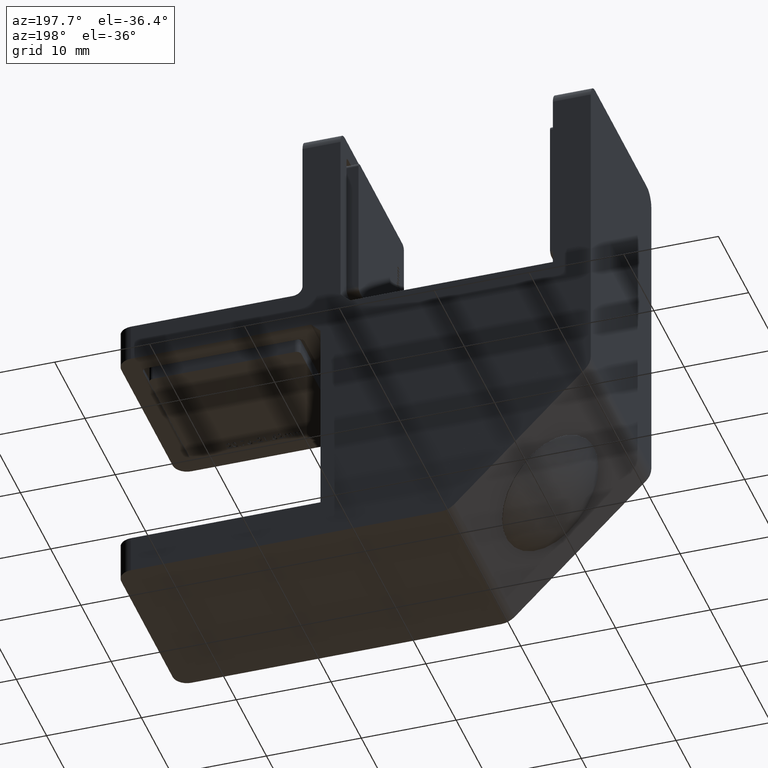
[diagram: clean part render]
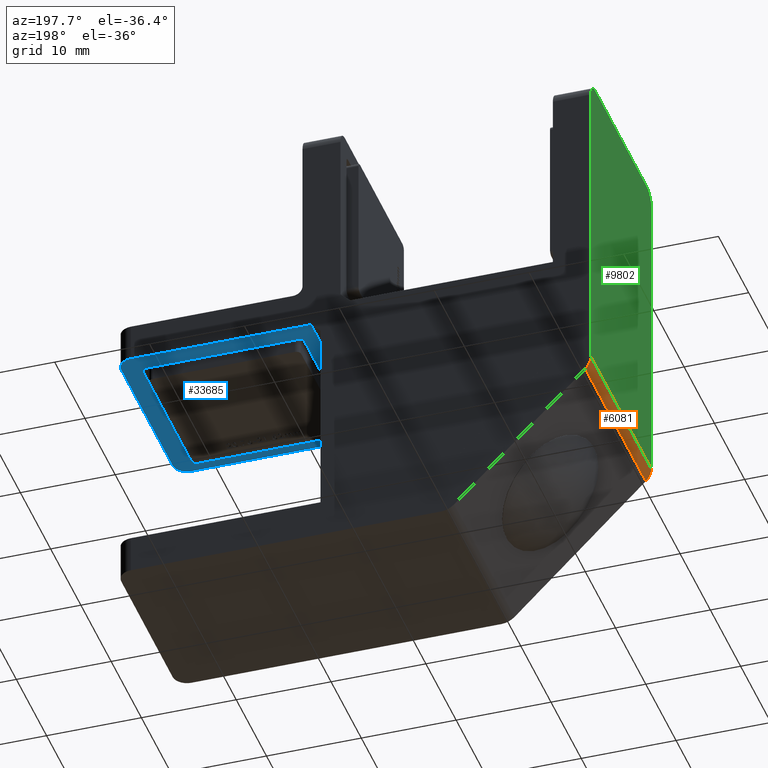
[diagram: same view with three faces highlighted in distinct colors, each labeled with its STEP entity id]
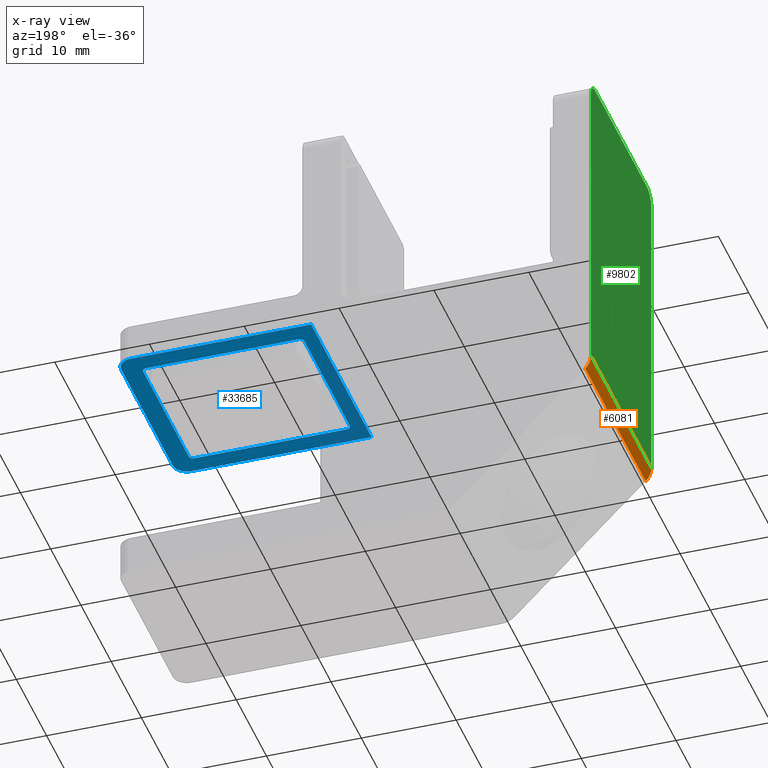
[diagram: x-ray of the same camera — body ghosted, the three highlighted faces saturated]
A machine part, auxiliary view with three faces highlighted in distinct colors.
The next image is the same camera in x-ray (body ghosted, the three faces saturated) — at least one of them is partly hidden behind the body in this view.
Their STEP definitions:

[orange] entity #6081 — the highlighted cylindrical surface (edge-blend (fillet) strip) has radius 2 mm, axis along (0, -1, 0).
#4755 = CIRCLE ( 'NONE', #55780, 2.000000000000000000 ) ;
#6081 = ADVANCED_FACE ( 'NONE', ( #44012 ), #61351, .T. ) ;
#7364 = EDGE_CURVE ( 'NONE', #7684, #48507, #10747, .T. ) ;
#7684 = VERTEX_POINT ( 'NONE', #45078 ) ;
#7805 = VERTEX_POINT ( 'NONE', #41856 ) ;
#8380 = DIRECTION ( 'NONE',  ( -0.000000000000000000, 1.000000000000000000, -0.000000000000000000 ) ) ;
#8778 = DIRECTION ( 'NONE',  ( 0.000000000000000000, 1.000000000000000000, 0.000000000000000000 ) ) ;
#10747 = LINE ( 'NONE', #51420, #48410 ) ;
#16428 = ORIENTED_EDGE ( 'NONE', *, *, #51409, .F. ) ;
#16558 = CARTESIAN_POINT ( 'NONE',  ( 0.000000000000000000, -10.00000000000000000, 15.82842712474619162 ) ) ;
#18268 = DIRECTION ( 'NONE',  ( -0.000000000000000000, -1.000000000000000000, 0.000000000000000000 ) ) ;
#20463 = ORIENTED_EDGE ( 'NONE', *, *, #7364, .F. ) ;
#20930 = AXIS2_PLACEMENT_3D ( 'NONE', #37857, #8778, #47795 ) ;
#21181 = CARTESIAN_POINT ( 'NONE',  ( 0.5857864376269044104, 10.00000000000000000, 14.41421356237309404 ) ) ;
#21252 = AXIS2_PLACEMENT_3D ( 'NONE', #44838, #50110, #34914 ) ;
#21787 = EDGE_CURVE ( 'NONE', #40176, #7684, #4755, .T. ) ;
#25315 = ORIENTED_EDGE ( 'NONE', *, *, #21787, .F. ) ;
#29814 = CARTESIAN_POINT ( 'NONE',  ( 2.000000000000000000, -10.00000000000000000, 15.82842712474619162 ) ) ;
#34914 = DIRECTION ( 'NONE',  ( 0.000000000000000000, 0.000000000000000000, -1.000000000000000000 ) ) ;
#37405 = EDGE_LOOP ( 'NONE', ( #50426, #20463, #25315, #16428 ) ) ;
#37857 = CARTESIAN_POINT ( 'NONE',  ( 2.000000000000000000, 10.00000000000000000, 15.82842712474619162 ) ) ;
#38076 = CARTESIAN_POINT ( 'NONE',  ( 0.000000000000000000, 10.00000000000000000, 15.82842712474619162 ) ) ;
#39085 = DIRECTION ( 'NONE',  ( 0.000000000000000000, 0.000000000000000000, -1.000000000000000000 ) ) ;
#40176 = VERTEX_POINT ( 'NONE', #16558 ) ;
#41856 = CARTESIAN_POINT ( 'NONE',  ( 0.000000000000000000, 10.00000000000000000, 15.82842712474619162 ) ) ;
#43531 = DIRECTION ( 'NONE',  ( -0.000000000000000000, -1.000000000000000000, -0.000000000000000000 ) ) ;
#44012 = FACE_OUTER_BOUND ( 'NONE', #37405, .T. ) ;
#44838 = CARTESIAN_POINT ( 'NONE',  ( 2.000000000000000000, 10.00000000000000000, 15.82842712474619162 ) ) ;
#45078 = CARTESIAN_POINT ( 'NONE',  ( 0.5857864376269044104, -10.00000000000000000, 14.41421356237309404 ) ) ;
#47795 = DIRECTION ( 'NONE',  ( 0.000000000000000000, 0.000000000000000000, -1.000000000000000000 ) ) ;
#48410 = VECTOR ( 'NONE', #8380, 1000.000000000000000 ) ;
#48507 = VERTEX_POINT ( 'NONE', #21181 ) ;
#50110 = DIRECTION ( 'NONE',  ( 0.000000000000000000, -1.000000000000000000, 0.000000000000000000 ) ) ;
#50166 = CIRCLE ( 'NONE', #20930, 2.000000000000000000 ) ;
#50426 = ORIENTED_EDGE ( 'NONE', *, *, #51489, .F. ) ;
#51409 = EDGE_CURVE ( 'NONE', #7805, #40176, #59947, .T. ) ;
#51420 = CARTESIAN_POINT ( 'NONE',  ( 0.5857864376269041884, 10.00000000000000000, 14.41421356237309404 ) ) ;
#51489 = EDGE_CURVE ( 'NONE', #48507, #7805, #50166, .T. ) ;
#55780 = AXIS2_PLACEMENT_3D ( 'NONE', #29814, #43531, #39085 ) ;
#59947 = LINE ( 'NONE', #38076, #61432 ) ;
#61351 = CYLINDRICAL_SURFACE ( 'NONE', #21252, 2.000000000000000000 ) ;
#61432 = VECTOR ( 'NONE', #18268, 1000.000000000000000 ) ;

[blue] entity #33685 — the highlighted planar face has unit normal (0, 0, -1).
#1101 = CARTESIAN_POINT ( 'NONE',  ( 31.00000000000001421, 7.499999999999969802, 26.39999999999994529 ) ) ;
#1469 = ORIENTED_EDGE ( 'NONE', *, *, #58417, .T. ) ;
#1585 = CARTESIAN_POINT ( 'NONE',  ( 48.49999999999998579, -10.00000000000000000, 26.40000000000000568 ) ) ;
#1742 = ORIENTED_EDGE ( 'NONE', *, *, #16383, .T. ) ;
#1967 = CARTESIAN_POINT ( 'NONE',  ( 48.49999999999998579, -8.500000000000000000, 26.40000000000000568 ) ) ;
#2564 = CARTESIAN_POINT ( 'NONE',  ( 0.000000000000000000, 10.00000000000000000, 26.40000000000000568 ) ) ;
#2615 = AXIS2_PLACEMENT_3D ( 'NONE', #44993, #25129, #49422 ) ;
#2921 = VECTOR ( 'NONE', #51959, 1000.000000000000000 ) ;
#3058 = CIRCLE ( 'NONE', #50586, 0.5000000000000004441 ) ;
#3414 = LINE ( 'NONE', #2564, #15508 ) ;
#3652 = DIRECTION ( 'NONE',  ( -1.000000000000000000, 0.000000000000000000, -0.000000000000000000 ) ) ;
#5118 = VECTOR ( 'NONE', #54086, 1000.000000000000000 ) ;
#5876 = LINE ( 'NONE', #41043, #17906 ) ;
#6794 = DIRECTION ( 'NONE',  ( 0.000000000000000000, 0.000000000000000000, -1.000000000000000000 ) ) ;
#6947 = ORIENTED_EDGE ( 'NONE', *, *, #19619, .T. ) ;
#7215 = CARTESIAN_POINT ( 'NONE',  ( 47.50000000000002132, -8.000000000000028422, 26.39999999999993463 ) ) ;
#7556 = EDGE_CURVE ( 'NONE', #39901, #30342, #3058, .T. ) ;
#8479 = CARTESIAN_POINT ( 'NONE',  ( 48.00000000000002132, 7.499999999999969802, 26.39999999999993463 ) ) ;
#8875 = VERTEX_POINT ( 'NONE', #16823 ) ;
#9306 = LINE ( 'NONE', #9565, #26692 ) ;
#9565 = CARTESIAN_POINT ( 'NONE',  ( 29.49999999999998579, 10.00000000000000000, 26.40000000000000568 ) ) ;
#10061 = DIRECTION ( 'NONE',  ( -1.000000000000000000, 0.000000000000000000, 0.000000000000000000 ) ) ;
#10345 = VECTOR ( 'NONE', #18848, 1000.000000000000000 ) ;
#10941 = LINE ( 'NONE', #42105, #28988 ) ;
#11229 = LINE ( 'NONE', #60721, #5118 ) ;
#11657 = CARTESIAN_POINT ( 'NONE',  ( 29.49999999999998579, -10.00000000000000000, 26.40000000000000568 ) ) ;
#12448 = EDGE_CURVE ( 'NONE', #42370, #34190, #47271, .T. ) ;
#12984 = CARTESIAN_POINT ( 'NONE',  ( 31.50000000000001421, 7.499999999999969802, 26.40000000000000568 ) ) ;
#14997 = CARTESIAN_POINT ( 'NONE',  ( 47.50000000000002132, 7.999999999999970690, 26.39999999999993463 ) ) ;
#15146 = CARTESIAN_POINT ( 'NONE',  ( 31.00000000000001421, 7.999999999999970690, 26.39999999999994529 ) ) ;
#15466 = VERTEX_POINT ( 'NONE', #36598 ) ;
#15508 = VECTOR ( 'NONE', #16956, 1000.000000000000000 ) ;
#15765 = DIRECTION ( 'NONE',  ( -0.000000000000000000, -0.000000000000000000, 1.000000000000000000 ) ) ;
#15981 = AXIS2_PLACEMENT_3D ( 'NONE', #12984, #55835, #46738 ) ;
#16383 = EDGE_CURVE ( 'NONE', #47585, #42370, #27738, .T. ) ;
#16823 = CARTESIAN_POINT ( 'NONE',  ( 49.99999999999998579, 8.500000000000000000, 26.40000000000000568 ) ) ;
#16956 = DIRECTION ( 'NONE',  ( 1.000000000000000000, -0.000000000000000000, 0.000000000000000000 ) ) ;
#16973 = EDGE_CURVE ( 'NONE', #44927, #28549, #46578, .T. ) ;
#17452 = ORIENTED_EDGE ( 'NONE', *, *, #26374, .T. ) ;
#17906 = VECTOR ( 'NONE', #28318, 1000.000000000000000 ) ;
#18215 = CARTESIAN_POINT ( 'NONE',  ( 0.000000000000000000, 10.00000000000000000, 26.40000000000000568 ) ) ;
#18530 = ORIENTED_EDGE ( 'NONE', *, *, #12448, .T. ) ;
#18848 = DIRECTION ( 'NONE',  ( 1.000000000000000000, -0.000000000000000000, 0.000000000000000000 ) ) ;
#19464 = ORIENTED_EDGE ( 'NONE', *, *, #16973, .F. ) ;
#19610 = AXIS2_PLACEMENT_3D ( 'NONE', #54338, #15765, #34501 ) ;
#19619 = EDGE_CURVE ( 'NONE', #15466, #22616, #3414, .T. ) ;
#19752 = CARTESIAN_POINT ( 'NONE',  ( 31.00000000000001421, -7.500000000000029310, 26.39999999999994529 ) ) ;
#19799 = CIRCLE ( 'NONE', #19610, 0.5000000000000004441 ) ;
#20185 = ORIENTED_EDGE ( 'NONE', *, *, #30281, .T. ) ;
#20201 = DIRECTION ( 'NONE',  ( -1.000000000000000000, -0.000000000000000000, 6.661338147750937270E-16 ) ) ;
#21797 = EDGE_CURVE ( 'NONE', #44927, #15466, #9306, .T. ) ;
#21895 = VERTEX_POINT ( 'NONE', #7215 ) ;
#22616 = VERTEX_POINT ( 'NONE', #34527 ) ;
#24027 = CIRCLE ( 'NONE', #58327, 1.500000000000001332 ) ;
#24300 = CARTESIAN_POINT ( 'NONE',  ( 31.50000000000001421, 7.999999999999970690, 26.39999999999994529 ) ) ;
#25109 = VERTEX_POINT ( 'NONE', #8479 ) ;
#25129 = DIRECTION ( 'NONE',  ( -0.000000000000000000, -0.000000000000000000, 1.000000000000000000 ) ) ;
#25516 = ORIENTED_EDGE ( 'NONE', *, *, #21797, .T. ) ;
#26374 = EDGE_CURVE ( 'NONE', #34190, #39901, #5876, .T. ) ;
#26692 = VECTOR ( 'NONE', #58053, 1000.000000000000000 ) ;
#27147 = ORIENTED_EDGE ( 'NONE', *, *, #54664, .T. ) ;
#27738 = LINE ( 'NONE', #15146, #58669 ) ;
#27958 = DIRECTION ( 'NONE',  ( -0.000000000000000000, -1.000000000000000000, -0.000000000000000000 ) ) ;
#28021 = FACE_OUTER_BOUND ( 'NONE', #46287, .T. ) ;
#28266 = ORIENTED_EDGE ( 'NONE', *, *, #32131, .T. ) ;
#28318 = DIRECTION ( 'NONE',  ( 0.000000000000000000, -1.000000000000000000, 0.000000000000000000 ) ) ;
#28549 = VERTEX_POINT ( 'NONE', #1585 ) ;
#28988 = VECTOR ( 'NONE', #27958, 1000.000000000000000 ) ;
#29112 = EDGE_CURVE ( 'NONE', #21895, #52349, #42665, .T. ) ;
#30250 = DIRECTION ( 'NONE',  ( 0.000000000000000000, 0.000000000000000000, -1.000000000000000000 ) ) ;
#30281 = EDGE_CURVE ( 'NONE', #8875, #44404, #10941, .T. ) ;
#30342 = VERTEX_POINT ( 'NONE', #57088 ) ;
#32131 = EDGE_CURVE ( 'NONE', #25109, #47585, #19799, .T. ) ;
#32362 = DIRECTION ( 'NONE',  ( 0.000000000000000000, 0.000000000000000000, -1.000000000000000000 ) ) ;
#33685 = ADVANCED_FACE ( 'NONE', ( #28021, #44638 ), #37399, .T. ) ;
#34075 = CARTESIAN_POINT ( 'NONE',  ( 31.50000000000001421, -7.500000000000029310, 26.40000000000000568 ) ) ;
#34190 = VERTEX_POINT ( 'NONE', #1101 ) ;
#34501 = DIRECTION ( 'NONE',  ( -1.000000000000000000, 0.000000000000000000, 0.000000000000000000 ) ) ;
#34527 = CARTESIAN_POINT ( 'NONE',  ( 48.49999999999998579, 10.00000000000000000, 26.40000000000000568 ) ) ;
#35387 = LINE ( 'NONE', #56615, #2921 ) ;
#36116 = CARTESIAN_POINT ( 'NONE',  ( 48.49999999999998579, 8.500000000000000000, 26.40000000000000568 ) ) ;
#36598 = CARTESIAN_POINT ( 'NONE',  ( 29.49999999999998579, 10.00000000000000000, 26.40000000000000568 ) ) ;
#37056 = AXIS2_PLACEMENT_3D ( 'NONE', #18215, #32362, #3652 ) ;
#37399 = PLANE ( 'NONE',  #37056 ) ;
#38541 = ORIENTED_EDGE ( 'NONE', *, *, #47888, .T. ) ;
#39901 = VERTEX_POINT ( 'NONE', #19752 ) ;
#40801 = ORIENTED_EDGE ( 'NONE', *, *, #45615, .T. ) ;
#41043 = CARTESIAN_POINT ( 'NONE',  ( 31.00000000000001421, 7.999999999999970690, 26.39999999999994529 ) ) ;
#42105 = CARTESIAN_POINT ( 'NONE',  ( 49.99999999999998579, 10.00000000000000000, 26.40000000000000568 ) ) ;
#42370 = VERTEX_POINT ( 'NONE', #24300 ) ;
#42665 = CIRCLE ( 'NONE', #2615, 0.5000000000000004441 ) ;
#44404 = VERTEX_POINT ( 'NONE', #55154 ) ;
#44638 = FACE_BOUND ( 'NONE', #49984, .T. ) ;
#44927 = VERTEX_POINT ( 'NONE', #11657 ) ;
#44993 = CARTESIAN_POINT ( 'NONE',  ( 47.50000000000002132, -7.500000000000027534, 26.40000000000000568 ) ) ;
#45438 = ORIENTED_EDGE ( 'NONE', *, *, #7556, .T. ) ;
#45615 = EDGE_CURVE ( 'NONE', #44404, #28549, #24027, .T. ) ;
#46287 = EDGE_LOOP ( 'NONE', ( #19464, #25516, #6947, #27147, #20185, #40801 ) ) ;
#46578 = LINE ( 'NONE', #52823, #10345 ) ;
#46738 = DIRECTION ( 'NONE',  ( -1.000000000000000000, 0.000000000000000000, 0.000000000000000000 ) ) ;
#47271 = CIRCLE ( 'NONE', #15981, 0.5000000000000004441 ) ;
#47585 = VERTEX_POINT ( 'NONE', #14997 ) ;
#47888 = EDGE_CURVE ( 'NONE', #52349, #25109, #11229, .T. ) ;
#49422 = DIRECTION ( 'NONE',  ( -1.000000000000000000, 0.000000000000000000, 0.000000000000000000 ) ) ;
#49879 = DIRECTION ( 'NONE',  ( -1.000000000000000000, 0.000000000000000000, 0.000000000000000000 ) ) ;
#49984 = EDGE_LOOP ( 'NONE', ( #17452, #45438, #1469, #61714, #38541, #28266, #1742, #18530 ) ) ;
#50586 = AXIS2_PLACEMENT_3D ( 'NONE', #34075, #52867, #10061 ) ;
#50882 = DIRECTION ( 'NONE',  ( -1.000000000000000000, 0.000000000000000000, 0.000000000000000000 ) ) ;
#51959 = DIRECTION ( 'NONE',  ( 1.000000000000000000, 1.020425574104003876E-16, -6.661338147750937270E-16 ) ) ;
#52349 = VERTEX_POINT ( 'NONE', #59595 ) ;
#52823 = CARTESIAN_POINT ( 'NONE',  ( 0.000000000000000000, -10.00000000000000000, 26.40000000000000568 ) ) ;
#52867 = DIRECTION ( 'NONE',  ( -0.000000000000000000, -0.000000000000000000, 1.000000000000000000 ) ) ;
#54086 = DIRECTION ( 'NONE',  ( 0.000000000000000000, 1.000000000000000000, 0.000000000000000000 ) ) ;
#54338 = CARTESIAN_POINT ( 'NONE',  ( 47.50000000000002132, 7.499999999999969802, 26.40000000000000568 ) ) ;
#54664 = EDGE_CURVE ( 'NONE', #22616, #8875, #59706, .T. ) ;
#55154 = CARTESIAN_POINT ( 'NONE',  ( 49.99999999999998579, -8.500000000000001776, 26.40000000000000568 ) ) ;
#55835 = DIRECTION ( 'NONE',  ( -0.000000000000000000, -0.000000000000000000, 1.000000000000000000 ) ) ;
#56615 = CARTESIAN_POINT ( 'NONE',  ( 31.00000000000001421, -8.000000000000030198, 26.39999999999994529 ) ) ;
#57088 = CARTESIAN_POINT ( 'NONE',  ( 31.50000000000001421, -8.000000000000030198, 26.39999999999994529 ) ) ;
#58053 = DIRECTION ( 'NONE',  ( 0.000000000000000000, 1.000000000000000000, 0.000000000000000000 ) ) ;
#58327 = AXIS2_PLACEMENT_3D ( 'NONE', #1967, #30250, #49879 ) ;
#58417 = EDGE_CURVE ( 'NONE', #30342, #21895, #35387, .T. ) ;
#58669 = VECTOR ( 'NONE', #20201, 1000.000000000000000 ) ;
#59595 = CARTESIAN_POINT ( 'NONE',  ( 48.00000000000002132, -7.500000000000027534, 26.39999999999993463 ) ) ;
#59706 = CIRCLE ( 'NONE', #60192, 1.500000000000001332 ) ;
#60192 = AXIS2_PLACEMENT_3D ( 'NONE', #36116, #6794, #50882 ) ;
#60721 = CARTESIAN_POINT ( 'NONE',  ( 48.00000000000002132, 7.999999999999970690, 26.39999999999993463 ) ) ;
#61714 = ORIENTED_EDGE ( 'NONE', *, *, #29112, .T. ) ;

[green] entity #9802 — the highlighted planar face has unit normal (1, 0, 0).
#1903 = DIRECTION ( 'NONE',  ( 0.000000000000000000, 0.000000000000000000, -1.000000000000000000 ) ) ;
#2298 = ORIENTED_EDGE ( 'NONE', *, *, #51409, .T. ) ;
#2524 = AXIS2_PLACEMENT_3D ( 'NONE', #53918, #29874, #53701 ) ;
#2952 = ORIENTED_EDGE ( 'NONE', *, *, #49015, .T. ) ;
#4682 = PLANE ( 'NONE',  #21104 ) ;
#4968 = VECTOR ( 'NONE', #24678, 1000.000000000000000 ) ;
#6158 = VECTOR ( 'NONE', #52380, 1000.000000000000000 ) ;
#6400 = LINE ( 'NONE', #13857, #47175 ) ;
#6870 = LINE ( 'NONE', #13558, #6158 ) ;
#7805 = VERTEX_POINT ( 'NONE', #41856 ) ;
#8923 = DIRECTION ( 'NONE',  ( 0.000000000000000000, 0.000000000000000000, -1.000000000000000000 ) ) ;
#9126 = CARTESIAN_POINT ( 'NONE',  ( 0.000000000000000000, 10.00000000000000000, 50.00000000000000000 ) ) ;
#9802 = ADVANCED_FACE ( 'NONE', ( #60284 ), #4682, .F. ) ;
#11227 = DIRECTION ( 'NONE',  ( -1.000000000000000000, 0.000000000000000000, -0.000000000000000000 ) ) ;
#12852 = VERTEX_POINT ( 'NONE', #54232 ) ;
#13162 = AXIS2_PLACEMENT_3D ( 'NONE', #26581, #11227, #1903 ) ;
#13558 = CARTESIAN_POINT ( 'NONE',  ( 0.000000000000000000, -10.00000000000000000, 50.00000000000000000 ) ) ;
#13651 = EDGE_LOOP ( 'NONE', ( #47097, #2298, #44954, #2952, #61827, #60709 ) ) ;
#13857 = CARTESIAN_POINT ( 'NONE',  ( 0.000000000000000000, 10.00000000000000000, 50.00000000000000000 ) ) ;
#16397 = CIRCLE ( 'NONE', #13162, 1.500000000000001332 ) ;
#16558 = CARTESIAN_POINT ( 'NONE',  ( 0.000000000000000000, -10.00000000000000000, 15.82842712474619162 ) ) ;
#18268 = DIRECTION ( 'NONE',  ( -0.000000000000000000, -1.000000000000000000, 0.000000000000000000 ) ) ;
#20736 = VERTEX_POINT ( 'NONE', #44154 ) ;
#21104 = AXIS2_PLACEMENT_3D ( 'NONE', #9126, #23440, #8923 ) ;
#23440 = DIRECTION ( 'NONE',  ( 1.000000000000000000, -0.000000000000000000, 0.000000000000000000 ) ) ;
#24678 = DIRECTION ( 'NONE',  ( -0.000000000000000000, -0.000000000000000000, 1.000000000000000000 ) ) ;
#26581 = CARTESIAN_POINT ( 'NONE',  ( 0.000000000000000000, -8.500000000000001776, 48.50000000000000000 ) ) ;
#29666 = DIRECTION ( 'NONE',  ( -0.000000000000000000, -1.000000000000000000, -0.000000000000000000 ) ) ;
#29874 = DIRECTION ( 'NONE',  ( -1.000000000000000000, 0.000000000000000000, -0.000000000000000000 ) ) ;
#38076 = CARTESIAN_POINT ( 'NONE',  ( 0.000000000000000000, 10.00000000000000000, 15.82842712474619162 ) ) ;
#39048 = CARTESIAN_POINT ( 'NONE',  ( 0.000000000000000000, 10.00000000000000000, 50.00000000000000000 ) ) ;
#39457 = CARTESIAN_POINT ( 'NONE',  ( 0.000000000000000000, 8.500000000000000000, 50.00000000000000000 ) ) ;
#39832 = EDGE_CURVE ( 'NONE', #57661, #20736, #6400, .T. ) ;
#40176 = VERTEX_POINT ( 'NONE', #16558 ) ;
#41856 = CARTESIAN_POINT ( 'NONE',  ( 0.000000000000000000, 10.00000000000000000, 15.82842712474619162 ) ) ;
#43819 = CIRCLE ( 'NONE', #2524, 1.500000000000001332 ) ;
#44154 = CARTESIAN_POINT ( 'NONE',  ( 0.000000000000000000, -8.500000000000001776, 50.00000000000000000 ) ) ;
#44954 = ORIENTED_EDGE ( 'NONE', *, *, #55805, .T. ) ;
#47097 = ORIENTED_EDGE ( 'NONE', *, *, #50004, .F. ) ;
#47175 = VECTOR ( 'NONE', #29666, 1000.000000000000000 ) ;
#49015 = EDGE_CURVE ( 'NONE', #12852, #20736, #16397, .T. ) ;
#50004 = EDGE_CURVE ( 'NONE', #7805, #61389, #60064, .T. ) ;
#51409 = EDGE_CURVE ( 'NONE', #7805, #40176, #59947, .T. ) ;
#52380 = DIRECTION ( 'NONE',  ( -0.000000000000000000, -0.000000000000000000, 1.000000000000000000 ) ) ;
#53341 = CARTESIAN_POINT ( 'NONE',  ( 0.000000000000000000, 10.00000000000000000, 48.50000000000000000 ) ) ;
#53701 = DIRECTION ( 'NONE',  ( 0.000000000000000000, 0.000000000000000000, -1.000000000000000000 ) ) ;
#53918 = CARTESIAN_POINT ( 'NONE',  ( 0.000000000000000000, 8.500000000000000000, 48.50000000000000000 ) ) ;
#54232 = CARTESIAN_POINT ( 'NONE',  ( 0.000000000000000000, -10.00000000000000000, 48.50000000000000000 ) ) ;
#55805 = EDGE_CURVE ( 'NONE', #40176, #12852, #6870, .T. ) ;
#57661 = VERTEX_POINT ( 'NONE', #39457 ) ;
#59947 = LINE ( 'NONE', #38076, #61432 ) ;
#60064 = LINE ( 'NONE', #39048, #4968 ) ;
#60284 = FACE_OUTER_BOUND ( 'NONE', #13651, .T. ) ;
#60709 = ORIENTED_EDGE ( 'NONE', *, *, #60906, .T. ) ;
#60906 = EDGE_CURVE ( 'NONE', #57661, #61389, #43819, .T. ) ;
#61389 = VERTEX_POINT ( 'NONE', #53341 ) ;
#61432 = VECTOR ( 'NONE', #18268, 1000.000000000000000 ) ;
#61827 = ORIENTED_EDGE ( 'NONE', *, *, #39832, .F. ) ;